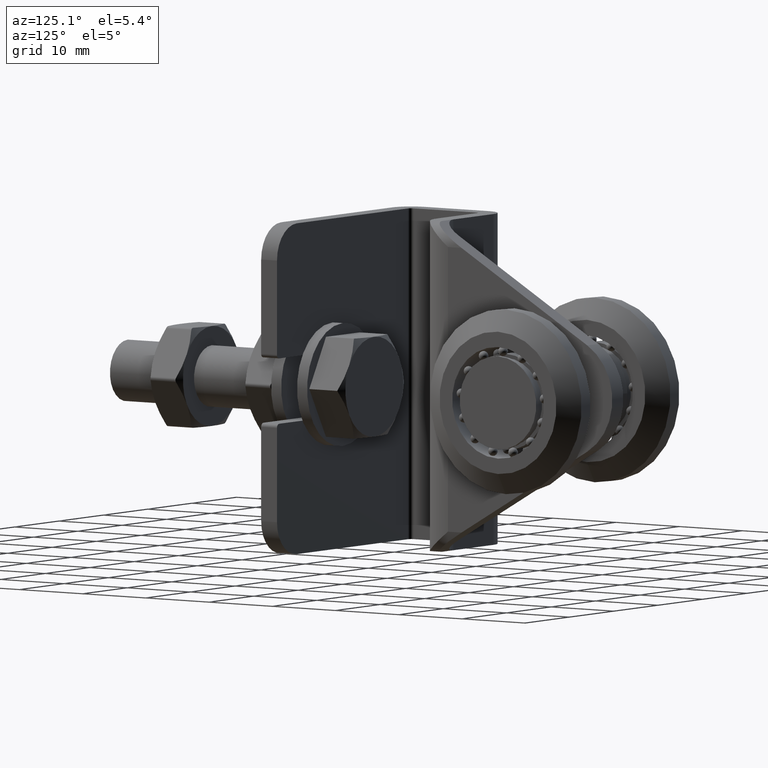
[diagram: clean part render]
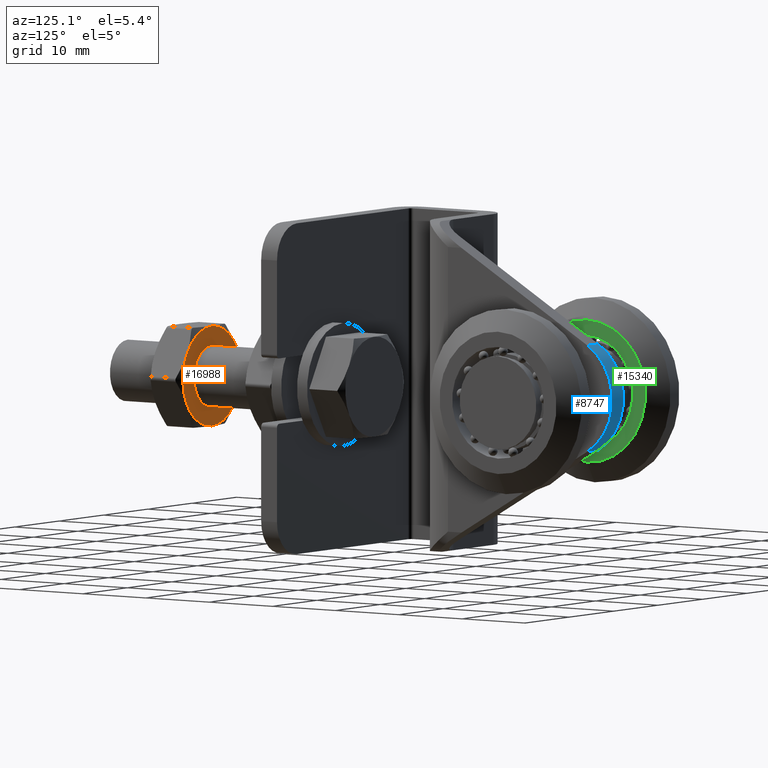
[diagram: same view with three faces highlighted in distinct colors, each labeled with its STEP entity id]
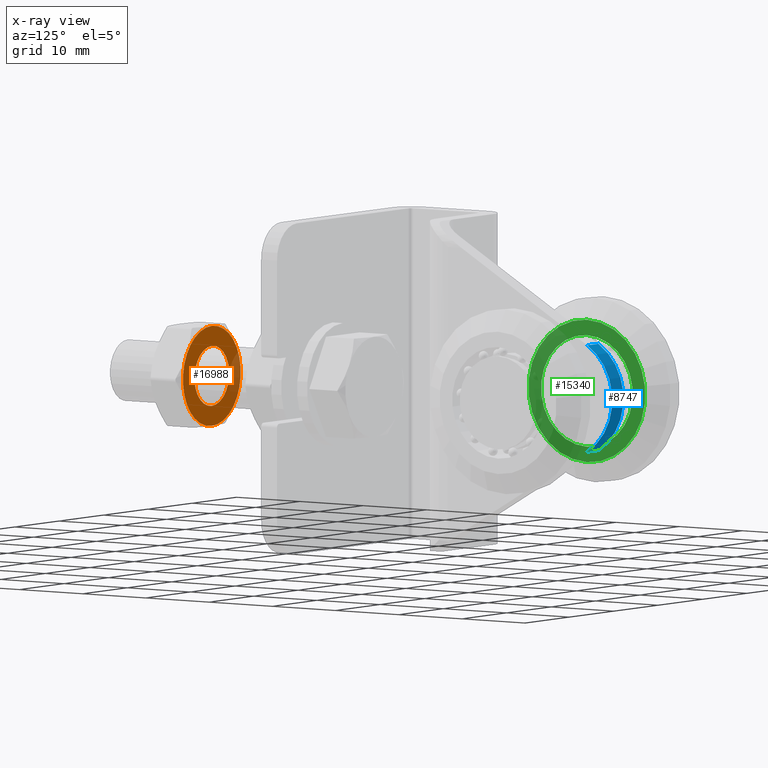
[diagram: x-ray of the same camera — body ghosted, the three highlighted faces saturated]
A machine part, auxiliary view with three faces highlighted in distinct colors.
The next image is the same camera in x-ray (body ghosted, the three faces saturated) — at least one of them is partly hidden behind the body in this view.
Their STEP definitions:

[orange] entity #16988 — the highlighted planar face has unit normal (0, 1, 0).
#101 = CARTESIAN_POINT ( 'NONE',  ( 0.000000000000000000, 2.500000000000002220, 0.000000000000000000 ) ) ;
#365 = EDGE_CURVE ( 'NONE', #14196, #15150, #3455, .T. ) ;
#533 = DIRECTION ( 'NONE',  ( 0.000000000000000000, -1.000000000000000000, -0.000000000000000000 ) ) ;
#676 = CIRCLE ( 'NONE', #8293, 6.500000000000000888 ) ;
#930 = AXIS2_PLACEMENT_3D ( 'NONE', #3373, #9992, #15219 ) ;
#1076 = VERTEX_POINT ( 'NONE', #8251 ) ;
#1419 = ORIENTED_EDGE ( 'NONE', *, *, #14014, .F. ) ;
#2099 = EDGE_CURVE ( 'NONE', #5427, #1076, #676, .T. ) ;
#2483 = EDGE_LOOP ( 'NONE', ( #12107 ) ) ;
#3137 = DIRECTION ( 'NONE',  ( 0.000000000000000000, 0.000000000000000000, 1.000000000000000000 ) ) ;
#3216 = CIRCLE ( 'NONE', #13878, 6.500000000000000888 ) ;
#3278 = CARTESIAN_POINT ( 'NONE',  ( 0.000000000000000000, 2.500000000000002220, 0.000000000000000000 ) ) ;
#3345 = DIRECTION ( 'NONE',  ( -3.552713678800500929E-15, 0.000000000000000000, 1.000000000000000000 ) ) ;
#3373 = CARTESIAN_POINT ( 'NONE',  ( 0.000000000000000000, 2.500000000000002220, 0.000000000000000000 ) ) ;
#3455 = CIRCLE ( 'NONE', #7505, 6.500000000000000888 ) ;
#3777 = ORIENTED_EDGE ( 'NONE', *, *, #365, .F. ) ;
#3946 = CIRCLE ( 'NONE', #5007, 6.500000000000000888 ) ;
#4230 = EDGE_CURVE ( 'NONE', #15150, #16932, #11104, .T. ) ;
#4547 = PLANE ( 'NONE',  #12470 ) ;
#4886 = CARTESIAN_POINT ( 'NONE',  ( 0.000000000000000000, 2.500000000000002220, 0.000000000000000000 ) ) ;
#5007 = AXIS2_PLACEMENT_3D ( 'NONE', #11364, #16677, #10150 ) ;
#5100 = AXIS2_PLACEMENT_3D ( 'NONE', #15065, #533, #3137 ) ;
#5141 = CARTESIAN_POINT ( 'NONE',  ( 5.629165124598850767, 2.500000000000002220, -3.250000000000004441 ) ) ;
#5427 = VERTEX_POINT ( 'NONE', #9638 ) ;
#5502 = DIRECTION ( 'NONE',  ( 0.000000000000000000, -1.000000000000000000, -0.000000000000000000 ) ) ;
#5847 = CARTESIAN_POINT ( 'NONE',  ( 0.000000000000000000, 2.500000000000002220, 0.000000000000000000 ) ) ;
#6366 = ORIENTED_EDGE ( 'NONE', *, *, #15432, .F. ) ;
#6823 = ORIENTED_EDGE ( 'NONE', *, *, #13733, .F. ) ;
#6883 = DIRECTION ( 'NONE',  ( -0.000000000000000000, 1.000000000000000000, 0.000000000000000000 ) ) ;
#7505 = AXIS2_PLACEMENT_3D ( 'NONE', #3278, #12427, #3345 ) ;
#7580 = DIRECTION ( 'NONE',  ( 0.000000000000000000, -1.000000000000000000, -0.000000000000000000 ) ) ;
#8251 = CARTESIAN_POINT ( 'NONE',  ( -5.629165124598851655, 2.500000000000002220, -3.250000000000001332 ) ) ;
#8293 = AXIS2_PLACEMENT_3D ( 'NONE', #13365, #5502, #14667 ) ;
#8797 = CARTESIAN_POINT ( 'NONE',  ( -8.673617379884035472E-16, 2.500000000000002220, -6.500000000000001776 ) ) ;
#9014 = DIRECTION ( 'NONE',  ( 0.000000000000000000, 0.000000000000000000, 1.000000000000000000 ) ) ;
#9097 = CIRCLE ( 'NONE', #930, 6.500000000000000888 ) ;
#9532 = AXIS2_PLACEMENT_3D ( 'NONE', #4886, #7580, #9014 ) ;
#9638 = CARTESIAN_POINT ( 'NONE',  ( -5.629165124598851655, 2.500000000000002220, 3.250000000000000888 ) ) ;
#9813 = VERTEX_POINT ( 'NONE', #11182 ) ;
#9834 = EDGE_LOOP ( 'NONE', ( #1419, #10000, #3777, #6366, #6823, #16541 ) ) ;
#9992 = DIRECTION ( 'NONE',  ( 0.000000000000000000, -1.000000000000000000, -0.000000000000000000 ) ) ;
#10000 = ORIENTED_EDGE ( 'NONE', *, *, #4230, .F. ) ;
#10078 = CARTESIAN_POINT ( 'NONE',  ( 5.629165124598850767, 2.500000000000002220, 3.250000000000000444 ) ) ;
#10150 = DIRECTION ( 'NONE',  ( 0.000000000000000000, 0.000000000000000000, -1.000000000000000000 ) ) ;
#10549 = DIRECTION ( 'NONE',  ( 1.776356839400250465E-15, 0.000000000000000000, 1.000000000000000000 ) ) ;
#11104 = CIRCLE ( 'NONE', #9532, 6.500000000000000888 ) ;
#11182 = CARTESIAN_POINT ( 'NONE',  ( 0.000000000000000000, 2.500000000000002220, 3.900000000000004796 ) ) ;
#11364 = CARTESIAN_POINT ( 'NONE',  ( 0.000000000000000000, 2.500000000000002220, 0.000000000000000000 ) ) ;
#12107 = ORIENTED_EDGE ( 'NONE', *, *, #14488, .T. ) ;
#12176 = DIRECTION ( 'NONE',  ( 0.000000000000000000, -0.000000000000000000, 1.000000000000000000 ) ) ;
#12427 = DIRECTION ( 'NONE',  ( 0.000000000000000000, -1.000000000000000000, -0.000000000000000000 ) ) ;
#12470 = AXIS2_PLACEMENT_3D ( 'NONE', #5847, #6883, #12176 ) ;
#13319 = FACE_BOUND ( 'NONE', #2483, .T. ) ;
#13365 = CARTESIAN_POINT ( 'NONE',  ( 0.000000000000000000, 2.500000000000002220, 0.000000000000000000 ) ) ;
#13547 = CARTESIAN_POINT ( 'NONE',  ( 1.301042606982605321E-15, 2.500000000000002220, 6.500000000000000888 ) ) ;
#13723 = FACE_OUTER_BOUND ( 'NONE', #9834, .T. ) ;
#13733 = EDGE_CURVE ( 'NONE', #1076, #14098, #3216, .T. ) ;
#13878 = AXIS2_PLACEMENT_3D ( 'NONE', #101, #16898, #10549 ) ;
#14014 = EDGE_CURVE ( 'NONE', #16932, #5427, #9097, .T. ) ;
#14098 = VERTEX_POINT ( 'NONE', #8797 ) ;
#14196 = VERTEX_POINT ( 'NONE', #5141 ) ;
#14488 = EDGE_CURVE ( 'NONE', #9813, #9813, #15207, .T. ) ;
#14667 = DIRECTION ( 'NONE',  ( 0.000000000000000000, 0.000000000000000000, 1.000000000000000000 ) ) ;
#15065 = CARTESIAN_POINT ( 'NONE',  ( 0.000000000000000000, 2.500000000000002220, 0.000000000000000000 ) ) ;
#15150 = VERTEX_POINT ( 'NONE', #10078 ) ;
#15207 = CIRCLE ( 'NONE', #5100, 3.900000000000004796 ) ;
#15219 = DIRECTION ( 'NONE',  ( 0.000000000000000000, 0.000000000000000000, 1.000000000000000000 ) ) ;
#15432 = EDGE_CURVE ( 'NONE', #14098, #14196, #3946, .T. ) ;
#16541 = ORIENTED_EDGE ( 'NONE', *, *, #2099, .F. ) ;
#16677 = DIRECTION ( 'NONE',  ( -0.000000000000000000, -1.000000000000000000, -0.000000000000000000 ) ) ;
#16898 = DIRECTION ( 'NONE',  ( 0.000000000000000000, -1.000000000000000000, -0.000000000000000000 ) ) ;
#16932 = VERTEX_POINT ( 'NONE', #13547 ) ;
#16988 = ADVANCED_FACE ( 'NONE', ( #13319, #13723 ), #4547, .T. ) ;

[blue] entity #8747 — the highlighted cylindrical surface (partial cylindrical patch) has radius 8 mm, axis along (1, 0, 0).
#57 = CIRCLE ( 'NONE', #1273, 8.000000000000000000 ) ;
#189 = VECTOR ( 'NONE', #3931, 1000.000000000000000 ) ;
#493 = DIRECTION ( 'NONE',  ( 1.000000000000000000, -0.000000000000000000, -0.000000000000000000 ) ) ;
#496 = EDGE_CURVE ( 'NONE', #16228, #10997, #6555, .T. ) ;
#783 = ORIENTED_EDGE ( 'NONE', *, *, #10348, .F. ) ;
#896 = DIRECTION ( 'NONE',  ( 0.000000000000000000, 0.000000000000000000, -1.000000000000000000 ) ) ;
#1264 = CARTESIAN_POINT ( 'NONE',  ( -1.250000000000001110, 18.52857198149307294, 6.911628447039741552 ) ) ;
#1273 = AXIS2_PLACEMENT_3D ( 'NONE', #16411, #12531, #4670 ) ;
#1353 = DIRECTION ( 'NONE',  ( 1.000000000000000000, -1.570223836013489248E-16, 0.000000000000000000 ) ) ;
#2137 = CARTESIAN_POINT ( 'NONE',  ( 1.250000000000001110, 18.52857198149307294, 6.911628447039741552 ) ) ;
#2227 = CARTESIAN_POINT ( 'NONE',  ( -1.250000000000001110, 18.52857198149307294, -6.911628447039742440 ) ) ;
#2528 = AXIS2_PLACEMENT_3D ( 'NONE', #11617, #1353, #11843 ) ;
#3732 = VERTEX_POINT ( 'NONE', #15551 ) ;
#3931 = DIRECTION ( 'NONE',  ( 1.000000000000000000, -0.000000000000000000, -0.000000000000000000 ) ) ;
#4670 = DIRECTION ( 'NONE',  ( 8.131516293641283255E-17, -1.000000000000000000, 0.000000000000000000 ) ) ;
#6491 = CARTESIAN_POINT ( 'NONE',  ( -16.25000000000000000, 18.52857198149307294, 6.911628447039741552 ) ) ;
#6555 = LINE ( 'NONE', #6491, #189 ) ;
#7015 = ORIENTED_EDGE ( 'NONE', *, *, #496, .T. ) ;
#8747 = ADVANCED_FACE ( 'NONE', ( #9612 ), #11456, .T. ) ;
#8919 = AXIS2_PLACEMENT_3D ( 'NONE', #13846, #9995, #896 ) ;
#9612 = FACE_OUTER_BOUND ( 'NONE', #12936, .T. ) ;
#9995 = DIRECTION ( 'NONE',  ( 1.000000000000000000, -0.000000000000000000, -0.000000000000000000 ) ) ;
#10046 = ORIENTED_EDGE ( 'NONE', *, *, #16740, .T. ) ;
#10054 = VERTEX_POINT ( 'NONE', #2227 ) ;
#10348 = EDGE_CURVE ( 'NONE', #10054, #3732, #15719, .T. ) ;
#10997 = VERTEX_POINT ( 'NONE', #2137 ) ;
#11065 = CIRCLE ( 'NONE', #2528, 8.000000000000000000 ) ;
#11456 = CYLINDRICAL_SURFACE ( 'NONE', #8919, 8.000000000000000000 ) ;
#11617 = CARTESIAN_POINT ( 'NONE',  ( -1.250000000000001110, 14.49999999999999822, 8.696207022725956487E-16 ) ) ;
#11843 = DIRECTION ( 'NONE',  ( 1.626303258728256651E-16, 1.000000000000000000, 0.000000000000000000 ) ) ;
#12131 = CARTESIAN_POINT ( 'NONE',  ( -16.25000000000000000, 18.52857198149307294, -6.911628447039742440 ) ) ;
#12531 = DIRECTION ( 'NONE',  ( -1.000000000000000000, -8.260587980841938780E-17, 0.000000000000000000 ) ) ;
#12936 = EDGE_LOOP ( 'NONE', ( #10046, #7015, #14952, #783 ) ) ;
#13846 = CARTESIAN_POINT ( 'NONE',  ( -16.25000000000000000, 14.49999999999999822, 8.696207022725956487E-16 ) ) ;
#14089 = EDGE_CURVE ( 'NONE', #10997, #3732, #57, .T. ) ;
#14952 = ORIENTED_EDGE ( 'NONE', *, *, #14089, .T. ) ;
#15551 = CARTESIAN_POINT ( 'NONE',  ( 1.250000000000001110, 18.52857198149307294, -6.911628447039742440 ) ) ;
#15719 = LINE ( 'NONE', #12131, #15933 ) ;
#15933 = VECTOR ( 'NONE', #493, 1000.000000000000000 ) ;
#16228 = VERTEX_POINT ( 'NONE', #1264 ) ;
#16411 = CARTESIAN_POINT ( 'NONE',  ( 1.250000000000001110, 14.49999999999999822, 8.696207022725956487E-16 ) ) ;
#16740 = EDGE_CURVE ( 'NONE', #10054, #16228, #11065, .T. ) ;

[green] entity #15340 — the highlighted planar face has unit normal (1, 0, 0).
#647 = CARTESIAN_POINT ( 'NONE',  ( -7.249999999999999112, 12.50000000000000000, -7.250000000000007105 ) ) ;
#1063 = FACE_BOUND ( 'NONE', #2480, .T. ) ;
#2341 = AXIS2_PLACEMENT_3D ( 'NONE', #8385, #10844, #14738 ) ;
#2478 = VERTEX_POINT ( 'NONE', #647 ) ;
#2480 = EDGE_LOOP ( 'NONE', ( #9469 ) ) ;
#2878 = VERTEX_POINT ( 'NONE', #16495 ) ;
#4509 = CIRCLE ( 'NONE', #2341, 9.250000000000005329 ) ;
#4539 = FACE_OUTER_BOUND ( 'NONE', #14138, .T. ) ;
#5351 = CIRCLE ( 'NONE', #6385, 7.250000000000003553 ) ;
#5612 = DIRECTION ( 'NONE',  ( 1.000000000000000000, -0.000000000000000000, 1.836970198721029688E-16 ) ) ;
#6385 = AXIS2_PLACEMENT_3D ( 'NONE', #9517, #5612, #14874 ) ;
#6853 = EDGE_CURVE ( 'NONE', #2878, #2878, #4509, .T. ) ;
#6960 = EDGE_CURVE ( 'NONE', #2478, #2478, #5351, .T. ) ;
#7650 = AXIS2_PLACEMENT_3D ( 'NONE', #9443, #15958, #8112 ) ;
#8112 = DIRECTION ( 'NONE',  ( 1.836970198721029688E-16, 0.000000000000000000, -1.000000000000000000 ) ) ;
#8385 = CARTESIAN_POINT ( 'NONE',  ( -7.250000000000000888, 12.50000000000000000, -3.168773592793776297E-15 ) ) ;
#9443 = CARTESIAN_POINT ( 'NONE',  ( -7.249999999999999112, 12.50000000000000000, 9.250000000000001776 ) ) ;
#9469 = ORIENTED_EDGE ( 'NONE', *, *, #6960, .F. ) ;
#9517 = CARTESIAN_POINT ( 'NONE',  ( -7.250000000000000888, 12.50000000000000000, -3.168773592793776297E-15 ) ) ;
#10844 = DIRECTION ( 'NONE',  ( 1.000000000000000000, -0.000000000000000000, 1.836970198721029688E-16 ) ) ;
#13332 = PLANE ( 'NONE',  #7650 ) ;
#13451 = ORIENTED_EDGE ( 'NONE', *, *, #6853, .T. ) ;
#14138 = EDGE_LOOP ( 'NONE', ( #13451 ) ) ;
#14738 = DIRECTION ( 'NONE',  ( 1.875376730785736240E-16, 0.000000000000000000, -1.000000000000000000 ) ) ;
#14874 = DIRECTION ( 'NONE',  ( 2.392722035830077493E-16, 0.000000000000000000, -1.000000000000000000 ) ) ;
#15340 = ADVANCED_FACE ( 'NONE', ( #4539, #1063 ), #13332, .T. ) ;
#15958 = DIRECTION ( 'NONE',  ( 1.000000000000000000, -0.000000000000000000, 1.836970198721029688E-16 ) ) ;
#16495 = CARTESIAN_POINT ( 'NONE',  ( -7.249999999999999112, 12.50000000000000000, -9.250000000000008882 ) ) ;